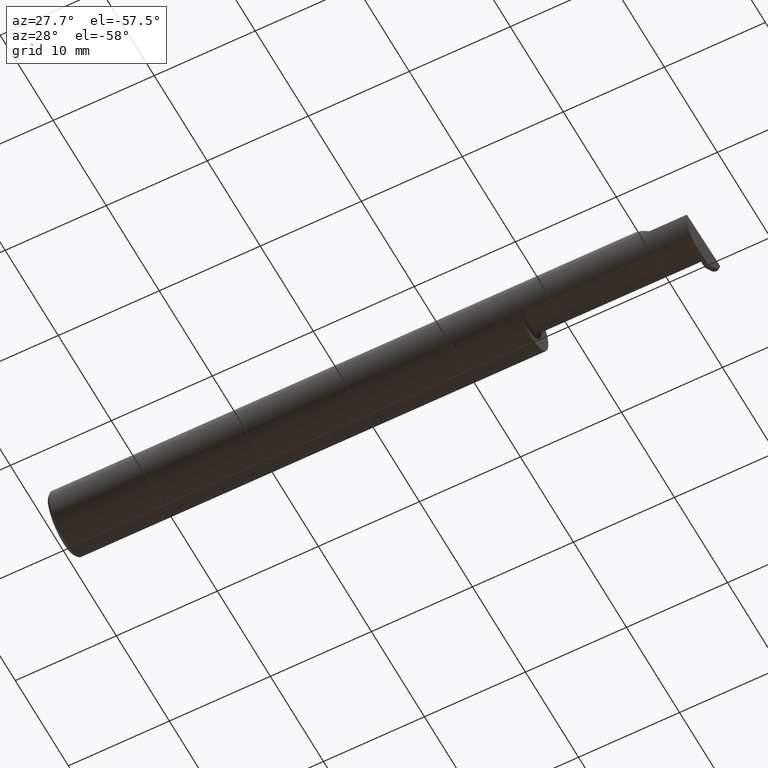
[diagram: clean part render]
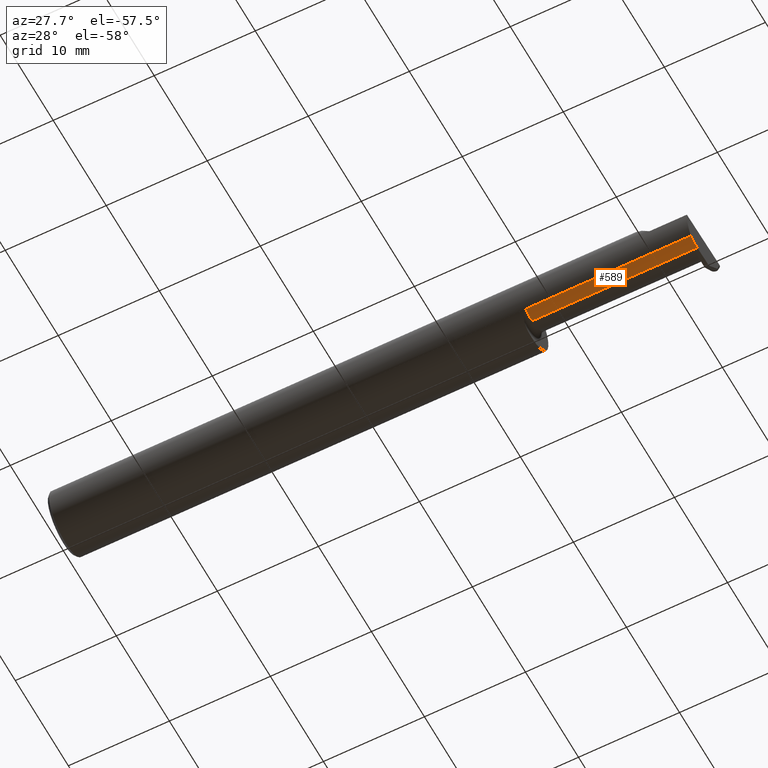
[diagram: same view with one face highlighted and labeled with its STEP entity id]
A machine part, auxiliary view. The second image highlights one B-rep face of the part: STEP entity #589.
In plain terms, the highlighted cylindrical surface (edge-blend (fillet) strip) has radius 2.4892 mm, axis along (-1, -0, -0).
Its self-contained STEP definition (entity closure, byte-faithful):
#58 = VERTEX_POINT ( 'NONE', #523 ) ;
#87 = EDGE_CURVE ( 'NONE', #453, #719, #443, .T. ) ;
#88 = VERTEX_POINT ( 'NONE', #741 ) ;
#99 = CARTESIAN_POINT ( 'NONE',  ( 1.849999999999999867, -0.04400000000000004602, 0.000000000000000000 ) ) ;
#100 = DIRECTION ( 'NONE',  ( -1.000000000000000000, -0.000000000000000000, -0.000000000000000000 ) ) ;
#104 = LINE ( 'NONE', #735, #580 ) ;
#126 =( BOUNDED_CURVE ( )  B_SPLINE_CURVE ( 3, ( #681, #801, #686, #566 ),
 .UNSPECIFIED., .F., .F. ) 
 B_SPLINE_CURVE_WITH_KNOTS ( ( 4, 4 ),
 ( 6.253187659403680598, 6.746650124384971470 ),
 .UNSPECIFIED. ) 
 CURVE ( )  GEOMETRIC_REPRESENTATION_ITEM ( )  RATIONAL_B_SPLINE_CURVE ( ( 1.000000000000000000, 0.9798106333074687591, 0.9798106333074687591, 1.000000000000000000 ) ) 
 REPRESENTATION_ITEM ( '' )  );
#128 = CARTESIAN_POINT ( 'NONE',  ( 1.824999999999999956, -0.04400000000000003908, -0.09800000000000003153 ) ) ;
#143 = CARTESIAN_POINT ( 'NONE',  ( 2.493502479154698914, -0.09042045454545441507, -0.08630840862739512509 ) ) ;
#215 = ORIENTED_EDGE ( 'NONE', *, *, #87, .F. ) ;
#240 = VECTOR ( 'NONE', #384, 39.37007874015748143 ) ;
#243 = AXIS2_PLACEMENT_3D ( 'NONE', #668, #100, #608 ) ;
#284 = AXIS2_PLACEMENT_3D ( 'NONE', #99, #669, #294 ) ;
#290 = FACE_OUTER_BOUND ( 'NONE', #710, .T. ) ;
#294 = DIRECTION ( 'NONE',  ( 0.000000000000000000, 0.000000000000000000, 1.000000000000000000 ) ) ;
#297 = EDGE_CURVE ( 'NONE', #88, #453, #564, .T. ) ;
#298 = DIRECTION ( 'NONE',  ( -1.000000000000000000, -0.000000000000000000, -0.000000000000000000 ) ) ;
#304 = CARTESIAN_POINT ( 'NONE',  ( 1.849999999999999867, -0.09042045454545437344, -0.08630840862739513897 ) ) ;
#323 = DIRECTION ( 'NONE',  ( -1.000000000000000000, -0.000000000000000000, -0.000000000000000000 ) ) ;
#384 = DIRECTION ( 'NONE',  ( -1.000000000000000000, -0.000000000000000000, -0.000000000000000000 ) ) ;
#416 = VERTEX_POINT ( 'NONE', #143 ) ;
#421 = ORIENTED_EDGE ( 'NONE', *, *, #779, .F. ) ;
#443 = CIRCLE ( 'NONE', #284, 0.09800000000000003153 ) ;
#453 = VERTEX_POINT ( 'NONE', #633 ) ;
#480 = ORIENTED_EDGE ( 'NONE', *, *, #673, .F. ) ;
#523 = CARTESIAN_POINT ( 'NONE',  ( 2.493904409643075581, -0.04400000000000004602, -0.09800000000000001765 ) ) ;
#540 = CYLINDRICAL_SURFACE ( 'NONE', #243, 0.09800000000000003153 ) ;
#547 = EDGE_CURVE ( 'NONE', #416, #719, #104, .T. ) ;
#564 = LINE ( 'NONE', #128, #240 ) ;
#566 = CARTESIAN_POINT ( 'NONE',  ( 2.493904409643075581, -0.04400000000000004602, -0.09800000000000001765 ) ) ;
#580 = VECTOR ( 'NONE', #298, 39.37007874015748143 ) ;
#582 = ORIENTED_EDGE ( 'NONE', *, *, #547, .T. ) ;
#585 = ORIENTED_EDGE ( 'NONE', *, *, #297, .F. ) ;
#589 = ADVANCED_FACE ( 'NONE', ( #290 ), #540, .T. ) ;
#608 = DIRECTION ( 'NONE',  ( 0.000000000000000000, 0.000000000000000000, 1.000000000000000000 ) ) ;
#633 = CARTESIAN_POINT ( 'NONE',  ( 1.849999999999999867, -0.04400000000000003908, -0.09800000000000003153 ) ) ;
#668 = CARTESIAN_POINT ( 'NONE',  ( 1.824999999999999956, -0.04400000000000004602, 0.000000000000000000 ) ) ;
#669 = DIRECTION ( 'NONE',  ( -1.000000000000000000, -0.000000000000000000, -0.000000000000000000 ) ) ;
#673 = EDGE_CURVE ( 'NONE', #416, #58, #126, .T. ) ;
#681 = CARTESIAN_POINT ( 'NONE',  ( 2.493502479154698914, -0.09042045454545441507, -0.08630840862739512509 ) ) ;
#686 = CARTESIAN_POINT ( 'NONE',  ( 2.493620144954195261, -0.06028551311893204367, -0.09800000000000005929 ) ) ;
#707 = LINE ( 'NONE', #713, #718 ) ;
#710 = EDGE_LOOP ( 'NONE', ( #585, #421, #480, #582, #215 ) ) ;
#713 = CARTESIAN_POINT ( 'NONE',  ( 2.672413070268786939, -0.04400000000000004602, -0.09800000000000001765 ) ) ;
#718 = VECTOR ( 'NONE', #323, 39.37007874015748143 ) ;
#719 = VERTEX_POINT ( 'NONE', #304 ) ;
#735 = CARTESIAN_POINT ( 'NONE',  ( 2.162237909999999985, -0.09042045454545441507, -0.08630840862739512509 ) ) ;
#741 = CARTESIAN_POINT ( 'NONE',  ( 2.479037770930198725, -0.04400000000000004602, -0.09800000000000001765 ) ) ;
#779 = EDGE_CURVE ( 'NONE', #58, #88, #707, .T. ) ;
#801 = CARTESIAN_POINT ( 'NONE',  ( 2.493483407481765113, -0.07607783494366282540, -0.09402249966297454575 ) ) ;